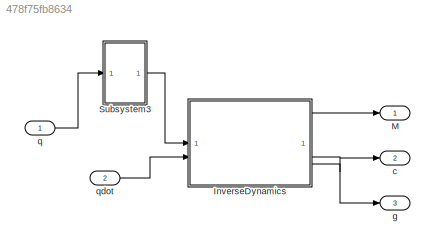
MODEL slx_478f75fb8634
KIND model
CONFIG AbsTol = auto
CONFIG EnableMultiTasking = off
CONFIG FixedStep = 0.001
CONFIG MaxStep = auto
CONFIG MinStep = auto
CONFIG RelTol = 1e-3
CONFIG SampleTimeConstraint = Unconstrained
CONFIG SolverName = FixedStepDiscrete
CONFIG StartTime = 0.0
CONFIG StopTime = Inf
WORKSPACE source: mxarray member
WORKSPACE robot: robotics.RigidBodyTree (value not decoded)
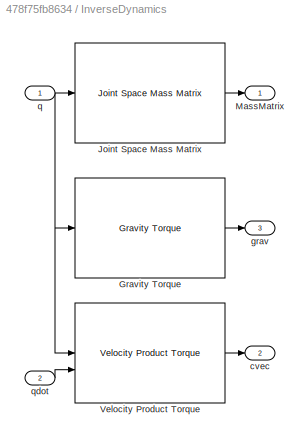
BLOCK [SubSystem] InverseDynamics
BLOCK [Reference] InverseDynamics/Gravity Torque  REF=robotmaniplib/Gravity Torque
  SourceBlock = robotmaniplib/Gravity Torque
  SourceType = Gravity Torque
BLOCK [Reference] InverseDynamics/Joint Space Mass Matrix  REF=robotmaniplib/Joint Space Mass Matrix
  SourceBlock = robotmaniplib/Joint Space Mass Matrix
  SourceType = Joint Space Mass Matrix
BLOCK [Outport] InverseDynamics/MassMatrix
BLOCK [Reference] InverseDynamics/Velocity Product Torque  REF=robotmaniplib/Velocity Product Torque
  SourceBlock = robotmaniplib/Velocity Product Torque
  SourceType = Velocity Product Torque
BLOCK [Outport] InverseDynamics/cvec
  Port = 2
BLOCK [Outport] InverseDynamics/grav
  Port = 3
BLOCK [Inport] InverseDynamics/q
BLOCK [Inport] InverseDynamics/qdot
  Port = 2
BLOCK [Outport] M
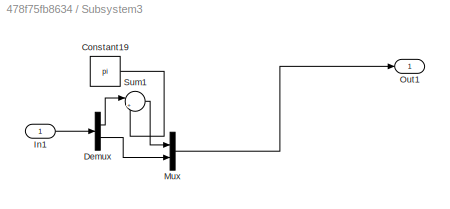
BLOCK [SubSystem] Subsystem3
BLOCK [Constant] Subsystem3/Constant19
  Value = pi
BLOCK [Demux] Subsystem3/Demux
  Outputs = [1,11]
BLOCK [Inport] Subsystem3/In1
BLOCK [Mux] Subsystem3/Mux
  DisplayOption = bar
  Inputs = [1,11]
BLOCK [Outport] Subsystem3/Out1
BLOCK [Sum] Subsystem3/Sum1
  Inputs = |++
BLOCK [Outport] c
  Port = 2
BLOCK [Outport] g
  Port = 3
BLOCK [Inport] q
BLOCK [Inport] qdot
  Port = 2
LINE InverseDynamics/Gravity Torque:1 -> InverseDynamics/grav:1
LINE InverseDynamics/Joint Space Mass Matrix:1 -> InverseDynamics/MassMatrix:1
LINE InverseDynamics/Velocity Product Torque:1 -> InverseDynamics/cvec:1
NET InverseDynamics/q:1 -> InverseDynamics/Gravity Torque:1, InverseDynamics/Joint Space Mass Matrix:1, InverseDynamics/Velocity Product Torque:1
LINE InverseDynamics/qdot:1 -> InverseDynamics/Velocity Product Torque:2
LINE InverseDynamics:1 -> M:1
LINE InverseDynamics:2 -> c:1
LINE InverseDynamics:3 -> g:1
LINE Subsystem3/Constant19:1 -> Subsystem3/Sum1:2
LINE Subsystem3/Demux:1 -> Subsystem3/Sum1:1
LINE Subsystem3/Demux:2 -> Subsystem3/Mux:2
LINE Subsystem3/In1:1 -> Subsystem3/Demux:1
LINE Subsystem3/Mux:1 -> Subsystem3/Out1:1
LINE Subsystem3/Sum1:1 -> Subsystem3/Mux:1
LINE Subsystem3:1 -> InverseDynamics:1
LINE q:1 -> Subsystem3:1
LINE qdot:1 -> InverseDynamics:2
note: NET lines group one-source signal fan-out (src -> all destinations, sorted); 1:1 wires keep LINE
